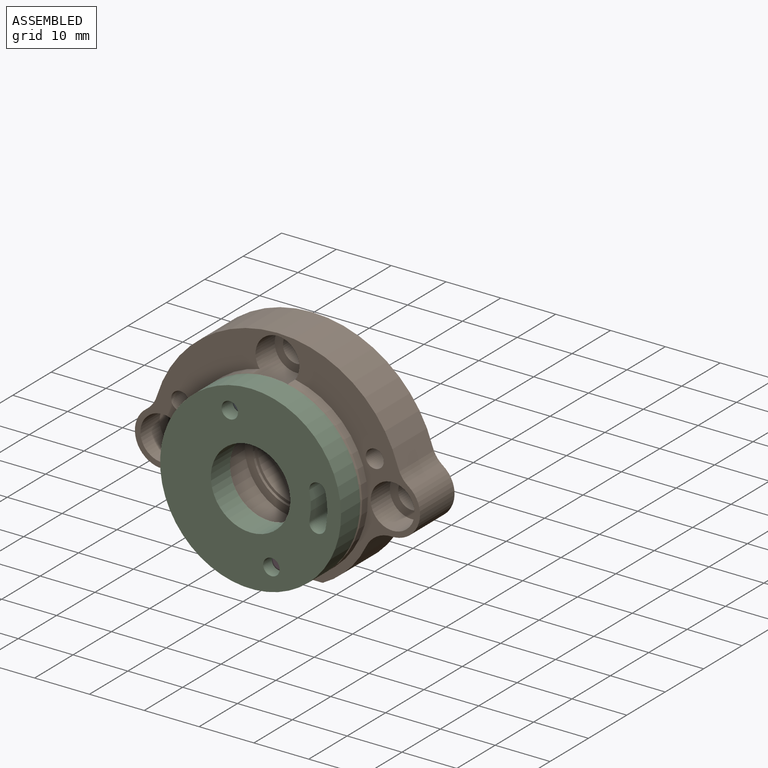
[diagram: assembled view]
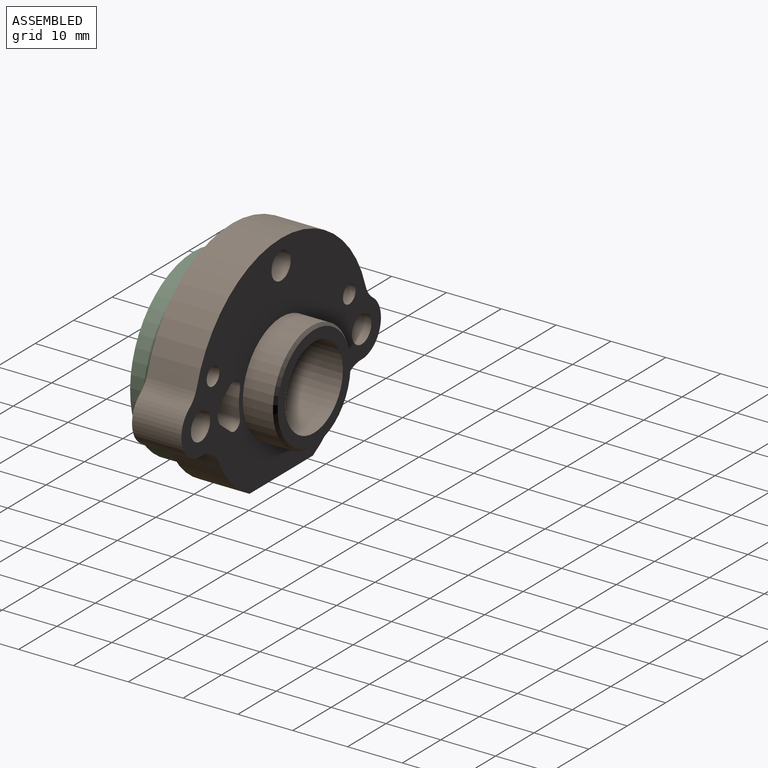
[diagram: assembled view, second angle]
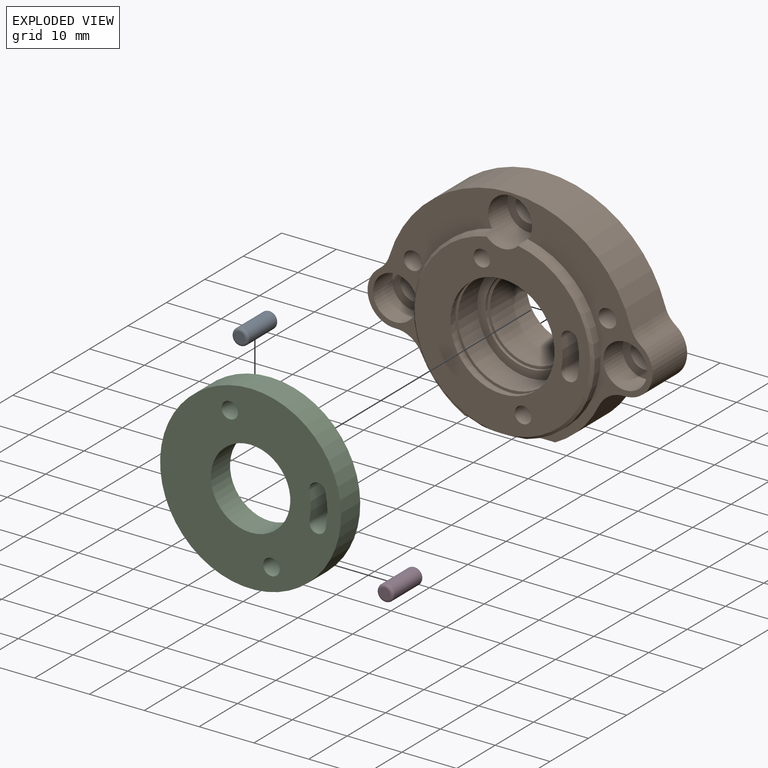
[diagram: exploded view]
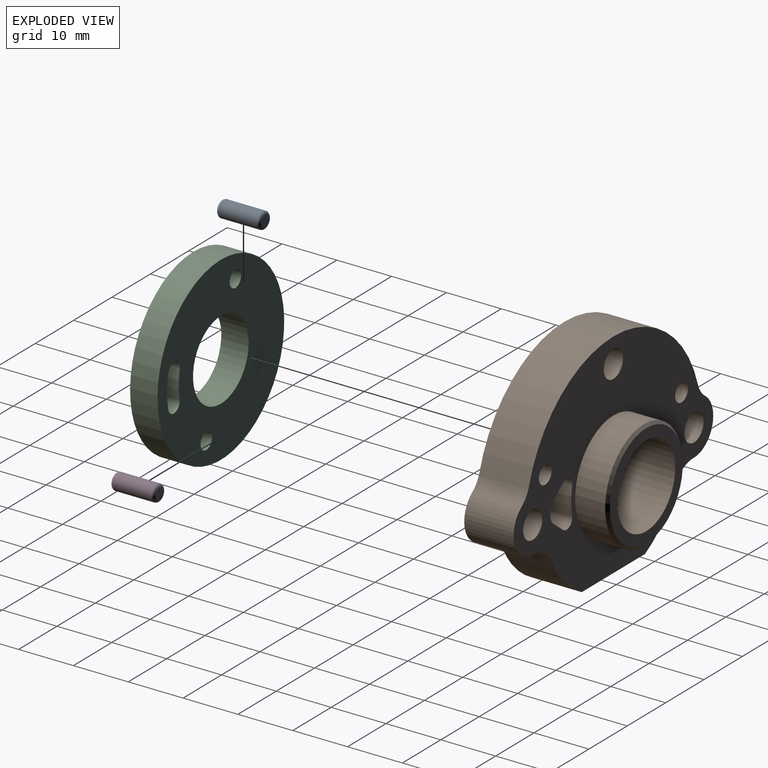
[diagram: exploded view, second angle]
ASSEMBLY  parts=4 mates=3
PART A: 5 faces, bbox 3.2x8x3.2 mm
  f0: cylinder r=1.5mm len=7mm, axis (0,1,0), area 66mm2, adj f3,f4
  f1: plane 2x2mm, normal (0,-1,0), area 3.1mm2, adj f4
  f2: plane 2x2mm, normal (0,1,0), area 3.1mm2, adj f3
  f3: torus R=1mm, axis (0,-1,0), area 6.5mm2, adj f0,f2
  f4: torus R=1mm, axis (0,-1,0), area 6.5mm2, adj f0,f1
PART B: 52 faces, bbox 52x17x39.5 mm
  f0: cylinder r=9.5mm len=19mm, axis (0,-1,0), area 298.5mm2, adj f26,f46
  f1: cylinder r=14mm len=6.06mm, axis (0,-1,0), area 24.4mm2, adj f2,f18,f21,f45
  f2: cylinder r=1.5mm len=11mm, axis (0,-1,0), area 44.7mm2, adj f1,f17,f21,f40,f42,f45
  f3: plane 19x19mm, normal (0,1,0), area 106.8mm2, adj f24,f50
  f4: plane 16.49x11mm, normal (0,0,-1), area 163.2mm2, adj f5,f13,f22,f23,f29,f40,f49,f51
  f5: cylinder r=18mm len=9mm, axis (0,1,0), area 104.5mm2, adj f4,f6,f23,f40
  f6: cylinder r=5mm len=9mm, axis (0,1,0), area 51.7mm2, adj f5,f7,f23,f40
  f7: cylinder r=5mm len=9.08mm, axis (0,1,0), area 114.9mm2, adj f6,f8,f23,f40
  f8: cylinder r=5mm len=9mm, axis (0,1,0), area 29.6mm2, adj f7,f9,f23,f40
  f9: cylinder r=23mm len=44.01mm, axis (0,1,0), area 527.9mm2, adj f8,f10,f23,f40
  f10: cylinder r=5mm len=9mm, axis (0,1,0), area 29.6mm2, adj f9,f11,f23,f40
  f11: cylinder r=5mm len=9.08mm, axis (0,1,0), area 114.9mm2, adj f10,f12,f23,f40
  f12: cylinder r=5mm len=9mm, axis (0,1,0), area 51.7mm2, adj f11,f13,f23,f40
  f13: cylinder r=18mm len=9mm, axis (0,1,0), area 104.5mm2, adj f4,f12,f23,f40
  f14: cylinder r=2.5mm len=5mm, axis (0,-1,0), area 62.8mm2, adj f30,f40
  f15: cylinder r=2.5mm len=5mm, axis (0,-1,0), area 62.8mm2, adj f32,f40
  f16: cylinder r=2.5mm len=5mm, axis (0,-1,0), area 62.8mm2, adj f34,f40
  f17: cylinder r=11mm len=11mm, axis (0,-1,0), area 52.8mm2, adj f2,f18,f21,f40
  f18: cylinder r=1.5mm len=11mm, axis (0,-1,0), area 44.7mm2, adj f1,f17,f21,f40,f44,f45
  f19: cylinder r=1.65mm len=9mm, axis (0,-1,0), area 93.3mm2, adj f23,f40
  f20: cylinder r=1.65mm len=9mm, axis (0,-1,0), area 93.3mm2, adj f23,f40
  f21: plane 32x31.74mm, normal (0,-1,0), area 477.2mm2, adj f1,f2,f17,f18,f25,f35,f37,f39
  f22: cylinder r=16.5mm len=32.18mm, axis (0,-1,0), area 66.7mm2, adj f4,f23,f35,f49
  f23: plane 52x39mm, normal (0,-1,0), area 404mm2, adj f4,f5,f6,f7,f8,f9,f10,f11
  f24: cylinder r=7.5mm len=15mm, axis (0,1,0), area 447.7mm2, adj f3,f28
  f25: cylinder r=9.5mm len=19mm, axis (0,-1,0), area 53.7mm2, adj f21,f47
  f26: plane 19x19mm, normal (0,-1,0), area 82.5mm2, adj f0,f27
  f27: cylinder r=8mm len=16mm, axis (0,-1,0), area 25.1mm2, adj f26,f28
  f28: plane 16x16mm, normal (0,-1,0), area 24.3mm2, adj f24,f27
  f29: cylinder r=16.5mm len=32.18mm, axis (0,-1,0), area 66.7mm2, adj f4,f23,f35,f51
  f30: plane 8x8mm, normal (0,-1,0), area 30.6mm2, adj f14,f31
  f31: cylinder r=4mm len=8mm, axis (0,-1,0), area 125.7mm2, adj f23,f30
  f32: plane 8x8mm, normal (0,-1,0), area 30.6mm2, adj f15,f33
  f33: cylinder r=4mm len=8mm, axis (0,-1,0), area 125.7mm2, adj f23,f32
  f34: plane 8x8mm, normal (0,-1,0), area 30.6mm2, adj f16,f35
  f35: cylinder r=4mm len=8mm, axis (0,-1,0), area 140.6mm2, adj f21,f22,f23,f29,f34,f49,f51
  f36: cone r=0mm half-angle=59deg, axis (0,-1,0), area 8.2mm2, adj f37
  f37: cylinder r=1.5mm len=6mm, axis (0,-1,0), area 56.5mm2, adj f21,f36
  f38: cone r=0mm half-angle=59deg, axis (0,-1,0), area 8.2mm2, adj f39
  f39: cylinder r=1.5mm len=6mm, axis (0,-1,0), area 56.5mm2, adj f21,f38
  f40: plane 52x39mm, normal (0,1,0), area 990.3mm2, adj f2,f4,f5,f6,f7,f8,f9,f10
  f41: cylinder r=10mm len=20mm, axis (0,1,0), area 345.6mm2, adj f40,f50
  f42: plane 7x2.42mm, normal (-0.62,0,-0.78), area 21.6mm2, adj f2,f40,f43,f45
  f43: cylinder r=2.5mm len=7mm, axis (0,1,0), area 31.5mm2, adj f40,f42,f44,f45
  f44: plane 7x2.42mm, normal (-0.62,0,0.78), area 21.6mm2, adj f18,f40,f43,f45
  f45: plane 7.76x3.36mm, normal (0,1,0), area 11.6mm2, adj f1,f2,f18,f42,f43,f44
  f46: plane 20x20mm, normal (0,-1,0), area 30.6mm2, adj f0,f48
  f47: plane 20x20mm, normal (0,1,0), area 30.6mm2, adj f25,f48
  f48: cylinder r=10mm len=20mm, axis (0,-1,0), area 69.1mm2, adj f46,f47
  f49: cone r=16mm half-angle=45deg, axis (0,1,0), area 32mm2, adj f4,f21,f22,f35
  f50: cone r=9.5mm half-angle=45deg, axis (0,-1,0), area 43.3mm2, adj f3,f41
  f51: cone r=16mm half-angle=45deg, axis (0,1,0), area 32mm2, adj f4,f21,f29,f35
PART C: 10 faces, bbox 33x5x33 mm
  f0: cylinder r=1.5mm len=5mm, axis (0,1,0), area 23.6mm2, adj f1,f7,f8,f9
  f1: cylinder r=11mm len=5mm, axis (0,1,0), area 24mm2, adj f0,f2,f8,f9
  f2: cylinder r=1.5mm len=5mm, axis (0,1,0), area 23.6mm2, adj f1,f7,f8,f9
  f3: cylinder r=16.5mm len=33mm, axis (0,1,0), area 518.4mm2, adj f8,f9
  f4: cylinder r=1.5mm len=5mm, axis (0,1,0), area 47.1mm2, adj f8,f9
  f5: cylinder r=1.5mm len=5mm, axis (0,1,0), area 47.1mm2, adj f8,f9
  f6: cylinder r=7.25mm len=14.5mm, axis (0,1,0), area 227.8mm2, adj f8,f9
  f7: cylinder r=14mm len=5.78mm, axis (0,1,0), area 30.5mm2, adj f0,f2,f8,f9
  f8: plane 33x33mm, normal (0,-1,0), area 652.6mm2, adj f0,f1,f2,f3,f4,f5,f6,f7
  f9: plane 33x33mm, normal (0,1,0), area 652.6mm2, adj f0,f1,f2,f3,f4,f5,f6,f7
PART D: same geometry as A
PLACE A t=(75.82,33.08,-67.45)mm
PLACE B t=(79.58,44.58,-79.38)mm fixed
PLACE C rot(axis=(0,-1,0),17.7deg) t=(79.58,27.58,-79.38)mm
PLACE D rot(axis=(0,1,0),0deg) t=(83.33,32.58,-91.3)mm
MATE fastened A.f0 <-> B.f38  axis (0,-1,0) through (75.82,25.08,-67.45)mm
MATE fastened D.f0 <-> B.f36  axis (0,-1,0) through (83.33,25.08,-91.3)mm
MATE revolute B.f0 <-> C.f6  axis (0,-1,0) through (79.58,27.58,-79.38)mm
